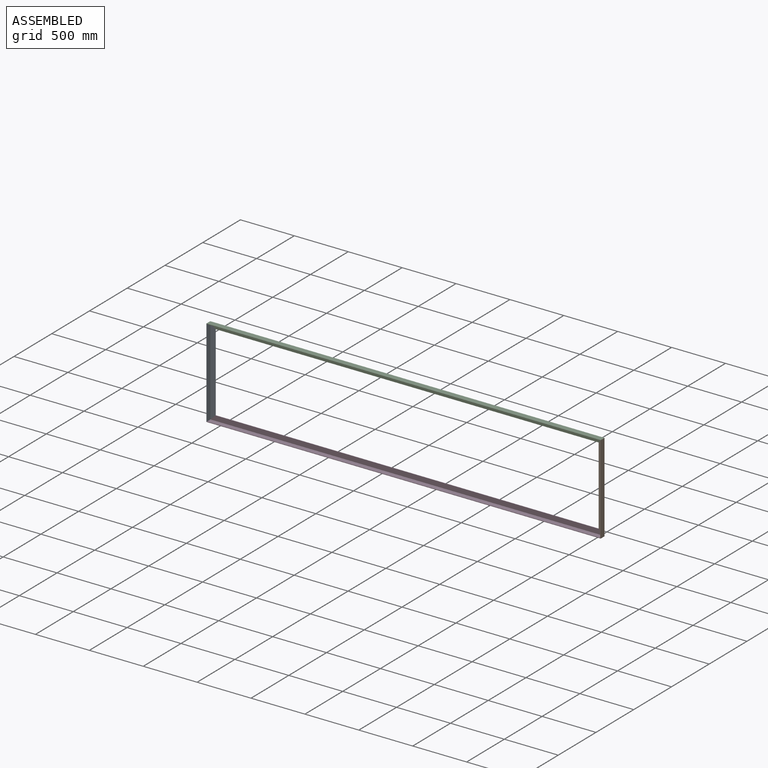
[diagram: assembled view]
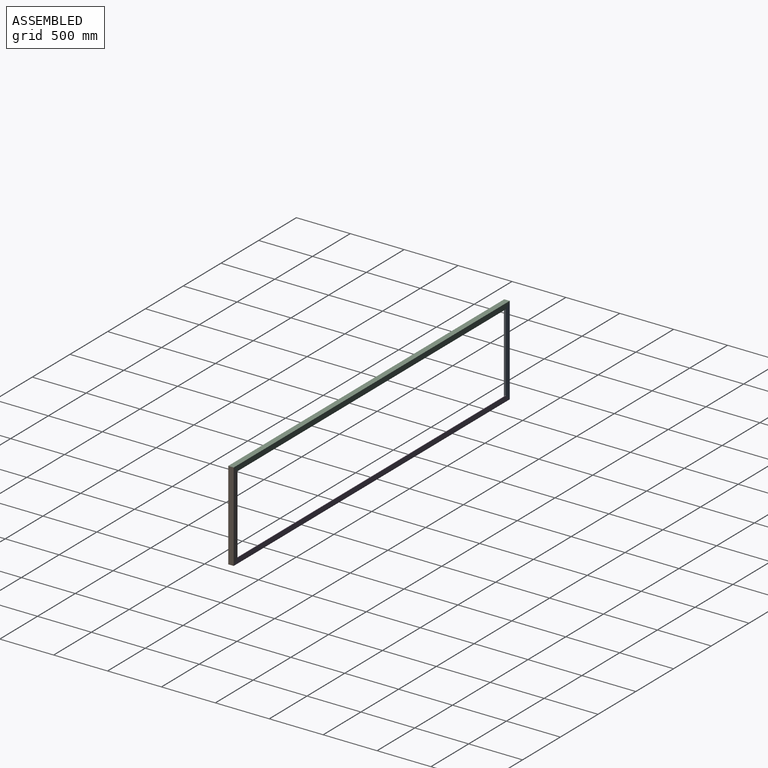
[diagram: assembled view, second angle]
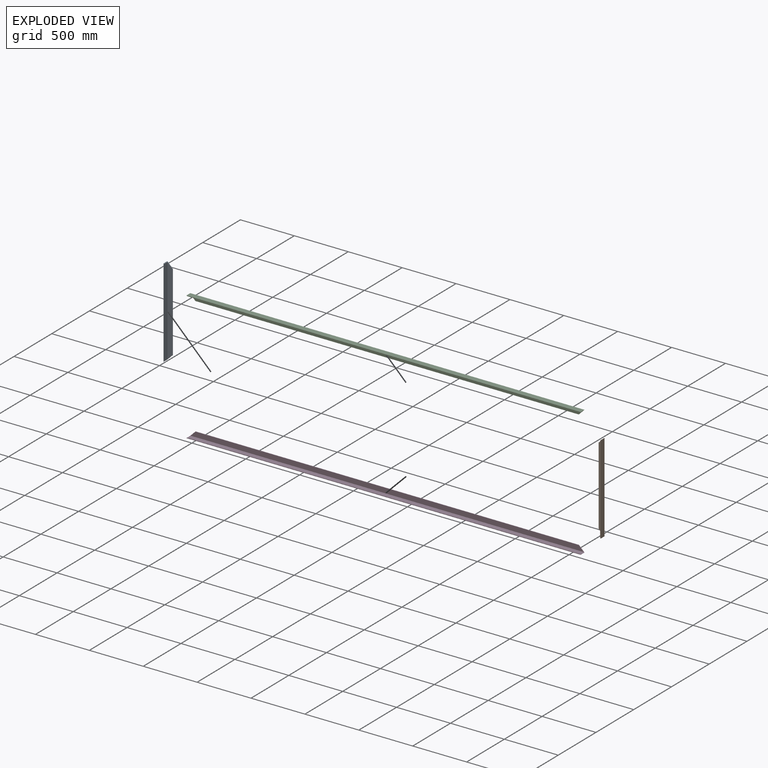
[diagram: exploded view]
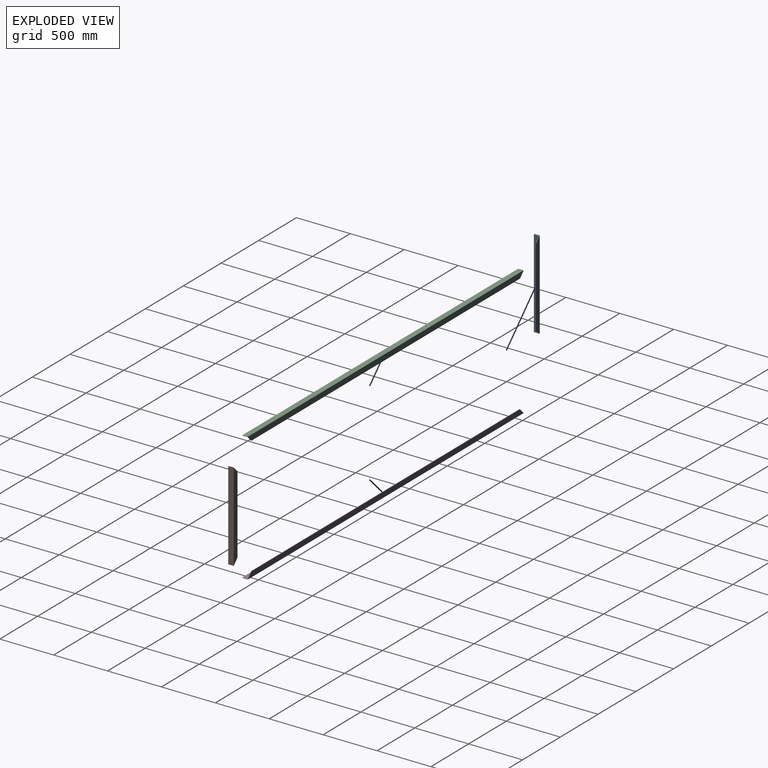
[diagram: exploded view, second angle]
ASSEMBLY  parts=4 mates=3
PART A: 8 faces, bbox 50.8x50.8x825.5 mm
  f0: plane 825.5x50.8mm, normal (0,-1,0), area 39354.8mm2, adj f1,f5,f6,f7
  f1: plane 723.9x4.76mm, normal (1,0,0), area 3447.6mm2, adj f0,f2,f6,f7
  f2: plane 815.98x46.04mm, normal (0,1,0), area 35446mm2, adj f1,f3,f6,f7
  f3: plane 815.98x46.04mm, normal (1,0,0), area 37565.4mm2, adj f2,f4,f6,f7
  f4: plane 825.5x4.76mm, normal (0,1,0), area 3908.8mm2, adj f3,f5,f6,f7
  f5: plane 825.5x50.8mm, normal (-1,0,0), area 41935.4mm2, adj f0,f4,f6,f7
  f6: plane 50.8x50.8mm, normal (0.71,0,0.71), area 652.2mm2, adj f0,f1,f2,f3,f4,f5
  f7: plane 50.8x50.8mm, normal (0.71,0,-0.71), area 652.2mm2, adj f0,f1,f2,f3,f4,f5
PART B: same geometry as A
PART C: 8 faces, bbox 50.8x50.8x3657.6 mm
  f0: plane 3657.6x50.8mm, normal (0,-1,0), area 183225.4mm2, adj f1,f5,f6,f7
  f1: plane 3556x4.76mm, normal (1,0,0), area 16935.5mm2, adj f0,f2,f6,f7
  f2: plane 3648.08x46.04mm, normal (0,1,0), area 165828.8mm2, adj f1,f3,f6,f7
  f3: plane 3648.08x46.04mm, normal (1,0,0), area 167948.3mm2, adj f2,f4,f6,f7
  f4: plane 3657.6x4.76mm, normal (0,1,0), area 17396.6mm2, adj f3,f5,f6,f7
  f5: plane 3657.6x50.8mm, normal (-1,0,0), area 185806.1mm2, adj f0,f4,f6,f7
  f6: plane 50.8x50.8mm, normal (0.71,0,0.71), area 652.2mm2, adj f0,f1,f2,f3,f4,f5
  f7: plane 50.8x50.8mm, normal (0.71,0,-0.71), area 652.2mm2, adj f0,f1,f2,f3,f4,f5
PART D: same geometry as C
PLACE A rot(axis=(1,0,0),180deg) t=(-1828.8,0,25.28)mm
PLACE B rot(axis=(0,0,1),180deg) t=(1828.8,0,-800.22)mm
PLACE C rot(axis=(0.71,0,-0.71),180deg) t=(1828.8,0,25.28)mm
PLACE D rot(axis=(-0.71,0,-0.71),180deg) t=(-1828.8,0,-800.22)mm
MATE fastened A.f6 <-> D.f7  axis (0.71,0,-0.71) through (-1828.8,0,-800.22)mm
MATE fastened D.f6 <-> B.f7  axis (0.71,0,0.71) through (1828.8,0,-800.22)mm
MATE fastened B.f6 <-> C.f7  axis (-0.71,0,0.71) through (1828.8,0,25.28)mm
